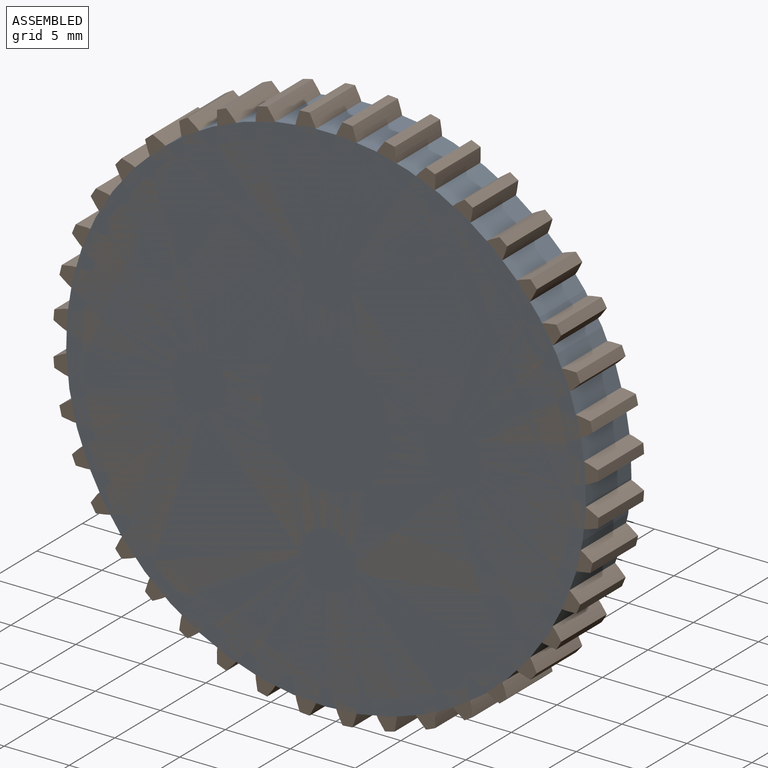
[diagram: assembled view]
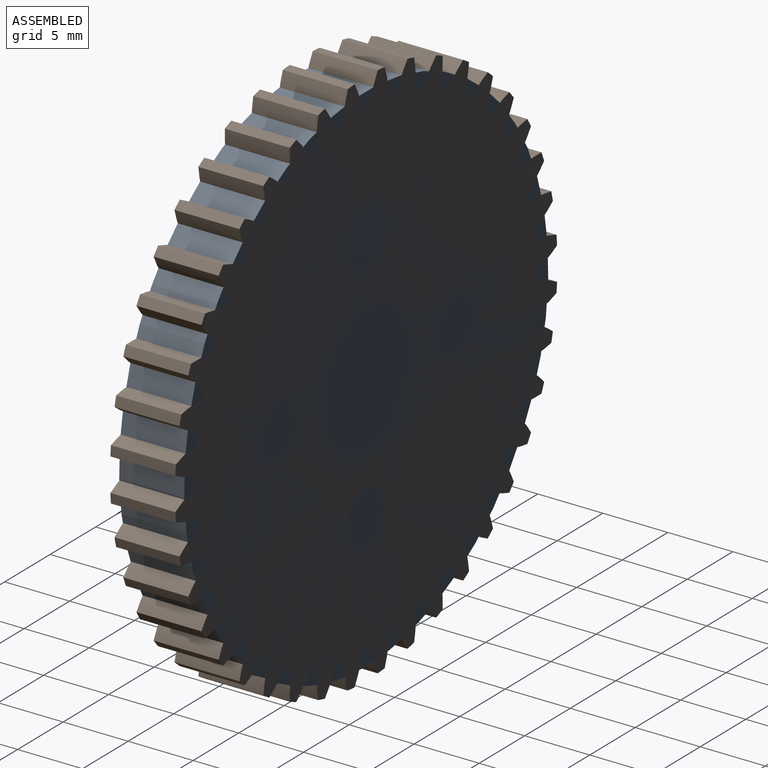
[diagram: assembled view, second angle]
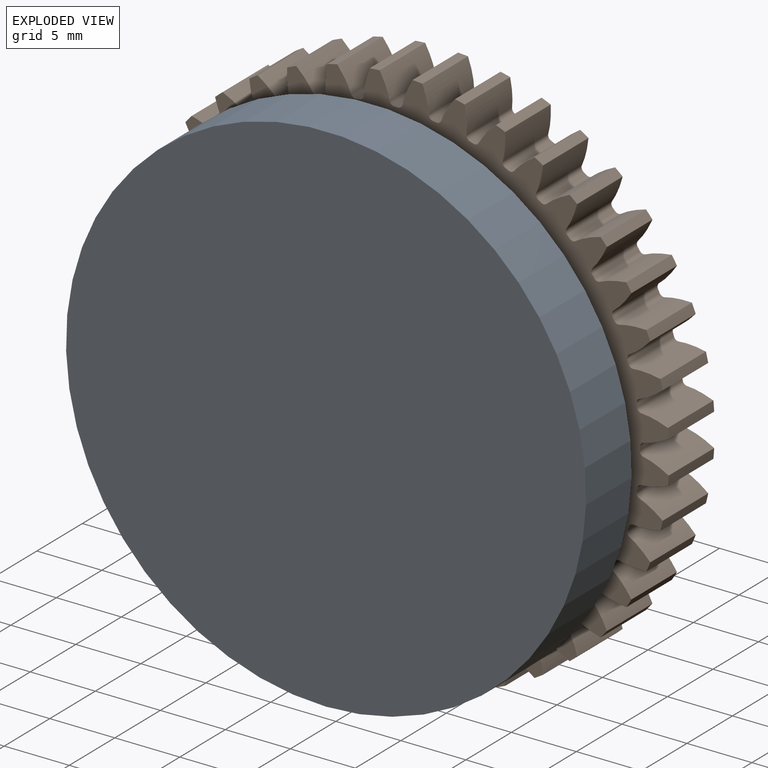
[diagram: exploded view]
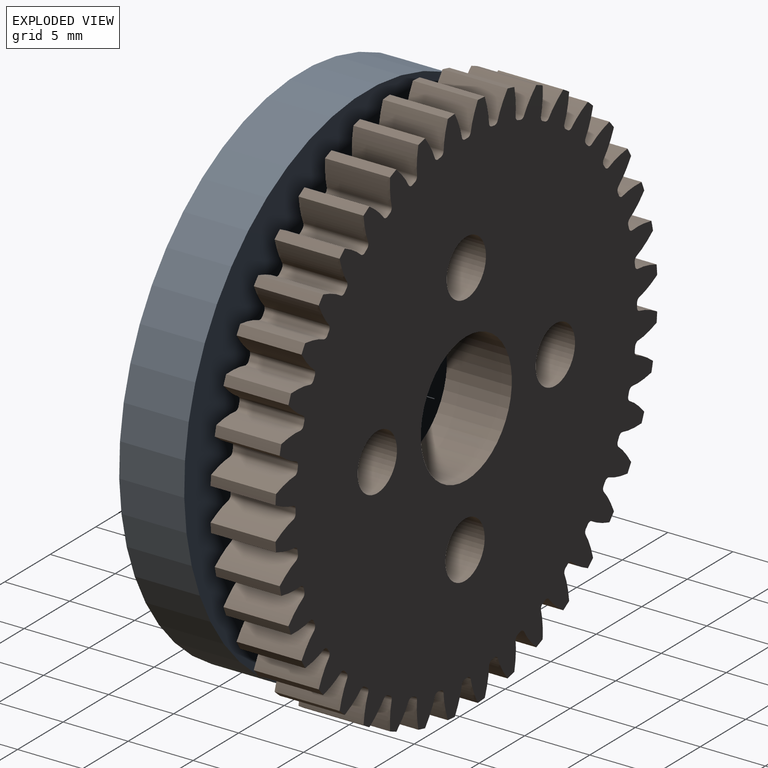
[diagram: exploded view, second angle]
ASSEMBLY  parts=2 mates=2
PART A: 3 faces, bbox 40x5x40 mm
  f0: cylinder r=20mm len=40mm, axis (0,1,0), area 628.3mm2, adj f1,f2
  f1: plane 40x40mm, normal (0,-1,0), area 1256.6mm2, adj f0
  f2: plane 40x40mm, normal (0,1,0), area 1256.6mm2, adj f0
PART B: 247 faces, bbox 41.9x5x41.9 mm
  f0: cylinder r=21mm len=5mm, axis (0,1,0), area 3.8mm2, adj f39,f41,f147,f239
  f1: cylinder r=21mm len=5mm, axis (0,1,0), area 3.8mm2, adj f39,f41,f234,f237
  f2: cylinder r=21mm len=5mm, axis (0,1,0), area 3.8mm2, adj f39,f41,f229,f232
  f3: cylinder r=21mm len=5mm, axis (0,1,0), area 3.8mm2, adj f39,f41,f224,f227
  f4: cylinder r=21mm len=5mm, axis (0,1,0), area 3.8mm2, adj f39,f41,f219,f222
  f5: cylinder r=21mm len=5mm, axis (0,1,0), area 3.8mm2, adj f39,f41,f214,f217
  f6: cylinder r=21mm len=5mm, axis (0,1,0), area 3.8mm2, adj f39,f41,f209,f212
  f7: cylinder r=21mm len=5mm, axis (0,1,0), area 3.8mm2, adj f39,f41,f204,f207
  f8: cylinder r=21mm len=5mm, axis (0,1,0), area 3.8mm2, adj f39,f41,f192,f199
  f9: cylinder r=21mm len=5mm, axis (0,1,0), area 3.8mm2, adj f39,f41,f194,f202
  f10: cylinder r=21mm len=5mm, axis (0,1,0), area 3.8mm2, adj f39,f41,f189,f197
  f11: cylinder r=21mm len=5mm, axis (0,1,0), area 3.8mm2, adj f39,f41,f184,f187
  f12: cylinder r=21mm len=5mm, axis (0,1,0), area 3.8mm2, adj f39,f41,f179,f182
  f13: cylinder r=21mm len=5mm, axis (0,1,0), area 3.8mm2, adj f39,f41,f174,f177
  f14: cylinder r=21mm len=5mm, axis (0,1,0), area 3.8mm2, adj f39,f41,f169,f172
  f15: cylinder r=21mm len=5mm, axis (0,1,0), area 3.8mm2, adj f39,f41,f164,f167
  f16: cylinder r=21mm len=5mm, axis (0,1,0), area 3.8mm2, adj f39,f41,f137,f159
  f17: cylinder r=21mm len=5mm, axis (0,1,0), area 3.8mm2, adj f39,f41,f154,f157
  f18: cylinder r=21mm len=5mm, axis (0,1,0), area 3.8mm2, adj f39,f41,f142,f149
  f19: cylinder r=21mm len=5mm, axis (0,1,0), area 3.8mm2, adj f39,f41,f144,f152
  f20: cylinder r=21mm len=5mm, axis (0,1,0), area 3.8mm2, adj f39,f41,f132,f139
  f21: cylinder r=21mm len=5mm, axis (0,1,0), area 3.8mm2, adj f39,f41,f127,f134
  f22: cylinder r=21mm len=5mm, axis (0,1,0), area 3.8mm2, adj f39,f41,f122,f129
  f23: cylinder r=21mm len=5mm, axis (0,1,0), area 3.8mm2, adj f39,f41,f82,f124
  f24: cylinder r=21mm len=5mm, axis (0,1,0), area 3.8mm2, adj f39,f41,f42,f119
  f25: cylinder r=21mm len=5mm, axis (0,1,0), area 3.8mm2, adj f39,f41,f114,f117
  f26: cylinder r=21mm len=5mm, axis (0,1,0), area 3.8mm2, adj f39,f41,f109,f112
  f27: cylinder r=21mm len=5mm, axis (0,1,0), area 3.8mm2, adj f39,f41,f104,f107
  f28: cylinder r=21mm len=5mm, axis (0,1,0), area 3.8mm2, adj f39,f41,f92,f99
  f29: cylinder r=21mm len=5mm, axis (0,1,0), area 3.8mm2, adj f39,f41,f94,f102
  f30: cylinder r=21mm len=5mm, axis (0,1,0), area 3.8mm2, adj f39,f41,f89,f97
  f31: cylinder r=21mm len=5mm, axis (0,1,0), area 3.8mm2, adj f39,f41,f84,f87
  f32: cylinder r=21mm len=5mm, axis (0,1,0), area 3.8mm2, adj f39,f41,f67,f79
  f33: cylinder r=21mm len=5mm, axis (0,1,0), area 3.8mm2, adj f39,f41,f74,f77
  f34: cylinder r=21mm len=5mm, axis (0,1,0), area 3.8mm2, adj f39,f41,f62,f69
  f35: cylinder r=21mm len=5mm, axis (0,1,0), area 3.8mm2, adj f39,f41,f64,f162
  f36: cylinder r=21mm len=5mm, axis (0,1,0), area 3.8mm2, adj f39,f41,f59,f72
  f37: cylinder r=21mm len=5mm, axis (0,1,0), area 3.8mm2, adj f39,f41,f54,f57
  f38: cylinder r=21mm len=5mm, axis (0,1,0), area 3.8mm2, adj f39,f41,f49,f52
  f39: plane 41.92x41.92mm, normal (0,-1,0), area 1110.1mm2, adj f0,f1,f2,f3,f4,f5,f6,f7
  f40: cylinder r=21mm len=5mm, axis (0,1,0), area 3.8mm2, adj f39,f41,f44,f47
  f41: plane 41.92x41.92mm, normal (0,1,0), area 1110.1mm2, adj f0,f1,f2,f3,f4,f5,f6,f7
  f42: extruded ~5x1.92mm, area 10.4mm2, adj f24,f39,f41,f45
  f43: cylinder r=18.75mm len=5mm, axis (0,1,0), area 1.4mm2, adj f39,f41,f45,f46
  f44: extruded ~5x1.92mm, area 10.4mm2, adj f39,f40,f41,f46
  f45: cylinder r=0.35mm len=5mm, axis (0,1,0), area 2.5mm2, adj f39,f41,f42,f43
  f46: cylinder r=0.35mm len=5mm, axis (0,1,0), area 2.5mm2, adj f39,f41,f43,f44
  f47: extruded ~5x2.02mm, area 10.4mm2, adj f39,f40,f41,f50
  f48: cylinder r=18.75mm len=5mm, axis (0,1,0), area 1.4mm2, adj f39,f41,f50,f51
  f49: extruded ~5x1.78mm, area 10.4mm2, adj f38,f39,f41,f51
  f50: cylinder r=0.35mm len=5mm, axis (0,1,0), area 2.5mm2, adj f39,f41,f47,f48
  f51: cylinder r=0.35mm len=5mm, axis (0,1,0), area 2.5mm2, adj f39,f41,f48,f49
  f52: extruded ~5x2.07mm, area 10.4mm2, adj f38,f39,f41,f55
  f53: cylinder r=18.75mm len=5mm, axis (0,1,0), area 1.4mm2, adj f39,f41,f55,f56
  f54: extruded ~5x1.59mm, area 10.4mm2, adj f37,f39,f41,f56
  f55: cylinder r=0.35mm len=5mm, axis (0,1,0), area 2.5mm2, adj f39,f41,f52,f53
  f56: cylinder r=0.35mm len=5mm, axis (0,1,0), area 2.5mm2, adj f39,f41,f53,f54
  f57: extruded ~5x2.07mm, area 10.4mm2, adj f37,f39,f41,f60
  f58: cylinder r=18.75mm len=5mm, axis (0,1,0), area 1.4mm2, adj f39,f41,f60,f61
  f59: extruded ~5x1.57mm, area 10.4mm2, adj f36,f39,f41,f61
  f60: cylinder r=0.35mm len=5mm, axis (0,1,0), area 2.5mm2, adj f39,f41,f57,f58
  f61: cylinder r=0.35mm len=5mm, axis (0,1,0), area 2.5mm2, adj f39,f41,f58,f59
  f62: extruded ~5x1.57mm, area 10.4mm2, adj f34,f39,f41,f65
  f63: cylinder r=18.75mm len=5mm, axis (0,1,0), area 1.4mm2, adj f39,f41,f65,f66
  f64: extruded ~5x2.07mm, area 10.4mm2, adj f35,f39,f41,f66
  f65: cylinder r=0.35mm len=5mm, axis (0,1,0), area 2.5mm2, adj f39,f41,f62,f63
  f66: cylinder r=0.35mm len=5mm, axis (0,1,0), area 2.5mm2, adj f39,f41,f63,f64
  f67: extruded ~5x1.76mm, area 10.4mm2, adj f32,f39,f41,f70
  f68: cylinder r=18.75mm len=5mm, axis (0,1,0), area 1.4mm2, adj f39,f41,f70,f71
  f69: extruded ~5x2.01mm, area 10.4mm2, adj f34,f39,f41,f71
  f70: cylinder r=0.35mm len=5mm, axis (0,1,0), area 2.5mm2, adj f39,f41,f67,f68
  f71: cylinder r=0.35mm len=5mm, axis (0,1,0), area 2.5mm2, adj f39,f41,f68,f69
  f72: extruded ~5x2.01mm, area 10.4mm2, adj f36,f39,f41,f75
  f73: cylinder r=18.75mm len=5mm, axis (0,1,0), area 1.4mm2, adj f39,f41,f75,f76
  f74: extruded ~5x1.76mm, area 10.4mm2, adj f33,f39,f41,f76
  f75: cylinder r=0.35mm len=5mm, axis (0,1,0), area 2.5mm2, adj f39,f41,f72,f73
  f76: cylinder r=0.35mm len=5mm, axis (0,1,0), area 2.5mm2, adj f39,f41,f73,f74
  f77: extruded ~5x1.91mm, area 10.4mm2, adj f33,f39,f41,f80
  f78: cylinder r=18.75mm len=5mm, axis (0,1,0), area 1.4mm2, adj f39,f41,f80,f81
  f79: extruded ~5x1.91mm, area 10.4mm2, adj f32,f39,f41,f81
  f80: cylinder r=0.35mm len=5mm, axis (0,1,0), area 2.5mm2, adj f39,f41,f77,f78
  f81: cylinder r=0.35mm len=5mm, axis (0,1,0), area 2.5mm2, adj f39,f41,f78,f79
  f82: extruded ~5x2.07mm, area 10.4mm2, adj f23,f39,f41,f85
  f83: cylinder r=18.75mm len=5mm, axis (0,1,0), area 1.4mm2, adj f39,f41,f85,f86
  f84: extruded ~5x1.59mm, area 10.4mm2, adj f31,f39,f41,f86
  f85: cylinder r=0.35mm len=5mm, axis (0,1,0), area 2.5mm2, adj f39,f41,f82,f83
  f86: cylinder r=0.35mm len=5mm, axis (0,1,0), area 2.5mm2, adj f39,f41,f83,f84
  f87: extruded ~5x2.07mm, area 10.4mm2, adj f31,f39,f41,f90
  f88: cylinder r=18.75mm len=5mm, axis (0,1,0), area 1.4mm2, adj f39,f41,f90,f91
  f89: extruded ~5x1.57mm, area 10.4mm2, adj f30,f39,f41,f91
  f90: cylinder r=0.35mm len=5mm, axis (0,1,0), area 2.5mm2, adj f39,f41,f87,f88
  f91: cylinder r=0.35mm len=5mm, axis (0,1,0), area 2.5mm2, adj f39,f41,f88,f89
  f92: extruded ~5x1.91mm, area 10.4mm2, adj f28,f39,f41,f95
  f93: cylinder r=18.75mm len=5mm, axis (0,1,0), area 1.4mm2, adj f39,f41,f95,f96
  f94: extruded ~5x1.91mm, area 10.4mm2, adj f29,f39,f41,f96
  f95: cylinder r=0.35mm len=5mm, axis (0,1,0), area 2.5mm2, adj f39,f41,f92,f93
  f96: cylinder r=0.35mm len=5mm, axis (0,1,0), area 2.5mm2, adj f39,f41,f93,f94
  f97: extruded ~5x2.01mm, area 10.4mm2, adj f30,f39,f41,f100
  f98: cylinder r=18.75mm len=5mm, axis (0,1,0), area 1.4mm2, adj f39,f41,f100,f101
  f99: extruded ~5x1.76mm, area 10.4mm2, adj f28,f39,f41,f101
  f100: cylinder r=0.35mm len=5mm, axis (0,1,0), area 2.5mm2, adj f39,f41,f97,f98
  f101: cylinder r=0.35mm len=5mm, axis (0,1,0), area 2.5mm2, adj f39,f41,f98,f99
  f102: extruded ~5x1.76mm, area 10.4mm2, adj f29,f39,f41,f105
  f103: cylinder r=18.75mm len=5mm, axis (0,1,0), area 1.4mm2, adj f39,f41,f105,f106
  f104: extruded ~5x2.01mm, area 10.4mm2, adj f27,f39,f41,f106
  f105: cylinder r=0.35mm len=5mm, axis (0,1,0), area 2.5mm2, adj f39,f41,f102,f103
  f106: cylinder r=0.35mm len=5mm, axis (0,1,0), area 2.5mm2, adj f39,f41,f103,f104
  f107: extruded ~5x1.57mm, area 10.4mm2, adj f27,f39,f41,f110
  f108: cylinder r=18.75mm len=5mm, axis (0,1,0), area 1.4mm2, adj f39,f41,f110,f111
  f109: extruded ~5x2.07mm, area 10.4mm2, adj f26,f39,f41,f111
  f110: cylinder r=0.35mm len=5mm, axis (0,1,0), area 2.5mm2, adj f39,f41,f107,f108
  f111: cylinder r=0.35mm len=5mm, axis (0,1,0), area 2.5mm2, adj f39,f41,f108,f109
  f112: extruded ~5x1.59mm, area 10.4mm2, adj f26,f39,f41,f115
  f113: cylinder r=18.75mm len=5mm, axis (0,1,0), area 1.4mm2, adj f39,f41,f115,f116
  f114: extruded ~5x2.07mm, area 10.4mm2, adj f25,f39,f41,f116
  f115: cylinder r=0.35mm len=5mm, axis (0,1,0), area 2.5mm2, adj f39,f41,f112,f113
  f116: cylinder r=0.35mm len=5mm, axis (0,1,0), area 2.5mm2, adj f39,f41,f113,f114
  f117: extruded ~5x1.78mm, area 10.4mm2, adj f25,f39,f41,f120
  f118: cylinder r=18.75mm len=5mm, axis (0,1,0), area 1.4mm2, adj f39,f41,f120,f121
  f119: extruded ~5x2.02mm, area 10.4mm2, adj f24,f39,f41,f121
  f120: cylinder r=0.35mm len=5mm, axis (0,1,0), area 2.5mm2, adj f39,f41,f117,f118
  f121: cylinder r=0.35mm len=5mm, axis (0,1,0), area 2.5mm2, adj f39,f41,f118,f119
  f122: extruded ~5x2.02mm, area 10.4mm2, adj f22,f39,f41,f125
  f123: cylinder r=18.75mm len=5mm, axis (0,1,0), area 1.4mm2, adj f39,f41,f125,f126
  f124: extruded ~5x1.78mm, area 10.4mm2, adj f23,f39,f41,f126
  f125: cylinder r=0.35mm len=5mm, axis (0,1,0), area 2.5mm2, adj f39,f41,f122,f123
  f126: cylinder r=0.35mm len=5mm, axis (0,1,0), area 2.5mm2, adj f39,f41,f123,f124
  f127: extruded ~5x1.92mm, area 10.4mm2, adj f21,f39,f41,f130
  f128: cylinder r=18.75mm len=5mm, axis (0,1,0), area 1.4mm2, adj f39,f41,f130,f131
  f129: extruded ~5x1.92mm, area 10.4mm2, adj f22,f39,f41,f131
  f130: cylinder r=0.35mm len=5mm, axis (0,1,0), area 2.5mm2, adj f39,f41,f127,f128
  f131: cylinder r=0.35mm len=5mm, axis (0,1,0), area 2.5mm2, adj f39,f41,f128,f129
  f132: extruded ~5x1.78mm, area 10.4mm2, adj f20,f39,f41,f135
  f133: cylinder r=18.75mm len=5mm, axis (0,1,0), area 1.4mm2, adj f39,f41,f135,f136
  f134: extruded ~5x2.02mm, area 10.4mm2, adj f21,f39,f41,f136
  f135: cylinder r=0.35mm len=5mm, axis (0,1,0), area 2.5mm2, adj f39,f41,f132,f133
  f136: cylinder r=0.35mm len=5mm, axis (0,1,0), area 2.5mm2, adj f39,f41,f133,f134
  f137: extruded ~5x1.59mm, area 10.4mm2, adj f16,f39,f41,f140
  f138: cylinder r=18.75mm len=5mm, axis (0,1,0), area 1.4mm2, adj f39,f41,f140,f141
  f139: extruded ~5x2.07mm, area 10.4mm2, adj f20,f39,f41,f141
  f140: cylinder r=0.35mm len=5mm, axis (0,1,0), area 2.5mm2, adj f39,f41,f137,f138
  f141: cylinder r=0.35mm len=5mm, axis (0,1,0), area 2.5mm2, adj f39,f41,f138,f139
  f142: extruded ~5x1.91mm, area 10.4mm2, adj f18,f39,f41,f145
  f143: cylinder r=18.75mm len=5mm, axis (0,1,0), area 1.4mm2, adj f39,f41,f145,f146
  f144: extruded ~5x1.91mm, area 10.4mm2, adj f19,f39,f41,f146
  f145: cylinder r=0.35mm len=5mm, axis (0,1,0), area 2.5mm2, adj f39,f41,f142,f143
  f146: cylinder r=0.35mm len=5mm, axis (0,1,0), area 2.5mm2, adj f39,f41,f143,f144
  f147: extruded ~5x2.01mm, area 10.4mm2, adj f0,f39,f41,f150
  f148: cylinder r=18.75mm len=5mm, axis (0,1,0), area 1.4mm2, adj f39,f41,f150,f151
  f149: extruded ~5x1.76mm, area 10.4mm2, adj f18,f39,f41,f151
  f150: cylinder r=0.35mm len=5mm, axis (0,1,0), area 2.5mm2, adj f39,f41,f147,f148
  f151: cylinder r=0.35mm len=5mm, axis (0,1,0), area 2.5mm2, adj f39,f41,f148,f149
  f152: extruded ~5x1.76mm, area 10.4mm2, adj f19,f39,f41,f155
  f153: cylinder r=18.75mm len=5mm, axis (0,1,0), area 1.4mm2, adj f39,f41,f155,f156
  f154: extruded ~5x2.01mm, area 10.4mm2, adj f17,f39,f41,f156
  f155: cylinder r=0.35mm len=5mm, axis (0,1,0), area 2.5mm2, adj f39,f41,f152,f153
  f156: cylinder r=0.35mm len=5mm, axis (0,1,0), area 2.5mm2, adj f39,f41,f153,f154
  f157: extruded ~5x1.57mm, area 10.4mm2, adj f17,f39,f41,f160
  f158: cylinder r=18.75mm len=5mm, axis (0,1,0), area 1.4mm2, adj f39,f41,f160,f161
  f159: extruded ~5x2.07mm, area 10.4mm2, adj f16,f39,f41,f161
  f160: cylinder r=0.35mm len=5mm, axis (0,1,0), area 2.5mm2, adj f39,f41,f157,f158
  f161: cylinder r=0.35mm len=5mm, axis (0,1,0), area 2.5mm2, adj f39,f41,f158,f159
  f162: extruded ~5x1.59mm, area 10.4mm2, adj f35,f39,f41,f165
  f163: cylinder r=18.75mm len=5mm, axis (0,1,0), area 1.4mm2, adj f39,f41,f165,f166
  f164: extruded ~5x2.07mm, area 10.4mm2, adj f15,f39,f41,f166
  f165: cylinder r=0.35mm len=5mm, axis (0,1,0), area 2.5mm2, adj f39,f41,f162,f163
  f166: cylinder r=0.35mm len=5mm, axis (0,1,0), area 2.5mm2, adj f39,f41,f163,f164
  f167: extruded ~5x1.78mm, area 10.4mm2, adj f15,f39,f41,f170
  f168: cylinder r=18.75mm len=5mm, axis (0,1,0), area 1.4mm2, adj f39,f41,f170,f171
  f169: extruded ~5x2.02mm, area 10.4mm2, adj f14,f39,f41,f171
  f170: cylinder r=0.35mm len=5mm, axis (0,1,0), area 2.5mm2, adj f39,f41,f167,f168
  f171: cylinder r=0.35mm len=5mm, axis (0,1,0), area 2.5mm2, adj f39,f41,f168,f169
  f172: extruded ~5x1.92mm, area 10.4mm2, adj f14,f39,f41,f175
  f173: cylinder r=18.75mm len=5mm, axis (0,1,0), area 1.4mm2, adj f39,f41,f175,f176
  f174: extruded ~5x1.92mm, area 10.4mm2, adj f13,f39,f41,f176
  f175: cylinder r=0.35mm len=5mm, axis (0,1,0), area 2.5mm2, adj f39,f41,f172,f173
  f176: cylinder r=0.35mm len=5mm, axis (0,1,0), area 2.5mm2, adj f39,f41,f173,f174
  f177: extruded ~5x2.02mm, area 10.4mm2, adj f13,f39,f41,f180
  f178: cylinder r=18.75mm len=5mm, axis (0,1,0), area 1.4mm2, adj f39,f41,f180,f181
  f179: extruded ~5x1.78mm, area 10.4mm2, adj f12,f39,f41,f181
  f180: cylinder r=0.35mm len=5mm, axis (0,1,0), area 2.5mm2, adj f39,f41,f177,f178
  f181: cylinder r=0.35mm len=5mm, axis (0,1,0), area 2.5mm2, adj f39,f41,f178,f179
  f182: extruded ~5x2.07mm, area 10.4mm2, adj f12,f39,f41,f185
  f183: cylinder r=18.75mm len=5mm, axis (0,1,0), area 1.4mm2, adj f39,f41,f185,f186
  f184: extruded ~5x1.59mm, area 10.4mm2, adj f11,f39,f41,f186
  f185: cylinder r=0.35mm len=5mm, axis (0,1,0), area 2.5mm2, adj f39,f41,f182,f183
  f186: cylinder r=0.35mm len=5mm, axis (0,1,0), area 2.5mm2, adj f39,f41,f183,f184
  f187: extruded ~5x2.07mm, area 10.4mm2, adj f11,f39,f41,f190
  f188: cylinder r=18.75mm len=5mm, axis (0,1,0), area 1.4mm2, adj f39,f41,f190,f191
  f189: extruded ~5x1.57mm, area 10.4mm2, adj f10,f39,f41,f191
  f190: cylinder r=0.35mm len=5mm, axis (0,1,0), area 2.5mm2, adj f39,f41,f187,f188
  f191: cylinder r=0.35mm len=5mm, axis (0,1,0), area 2.5mm2, adj f39,f41,f188,f189
  f192: extruded ~5x1.91mm, area 10.4mm2, adj f8,f39,f41,f195
  f193: cylinder r=18.75mm len=5mm, axis (0,1,0), area 1.4mm2, adj f39,f41,f195,f196
  f194: extruded ~5x1.91mm, area 10.4mm2, adj f9,f39,f41,f196
  f195: cylinder r=0.35mm len=5mm, axis (0,1,0), area 2.5mm2, adj f39,f41,f192,f193
  f196: cylinder r=0.35mm len=5mm, axis (0,1,0), area 2.5mm2, adj f39,f41,f193,f194
  f197: extruded ~5x2.01mm, area 10.4mm2, adj f10,f39,f41,f200
  f198: cylinder r=18.75mm len=5mm, axis (0,1,0), area 1.4mm2, adj f39,f41,f200,f201
  f199: extruded ~5x1.76mm, area 10.4mm2, adj f8,f39,f41,f201
  f200: cylinder r=0.35mm len=5mm, axis (0,1,0), area 2.5mm2, adj f39,f41,f197,f198
  f201: cylinder r=0.35mm len=5mm, axis (0,1,0), area 2.5mm2, adj f39,f41,f198,f199
  f202: extruded ~5x1.76mm, area 10.4mm2, adj f9,f39,f41,f205
  f203: cylinder r=18.75mm len=5mm, axis (0,1,0), area 1.4mm2, adj f39,f41,f205,f206
  f204: extruded ~5x2.01mm, area 10.4mm2, adj f7,f39,f41,f206
  f205: cylinder r=0.35mm len=5mm, axis (0,1,0), area 2.5mm2, adj f39,f41,f202,f203
  f206: cylinder r=0.35mm len=5mm, axis (0,1,0), area 2.5mm2, adj f39,f41,f203,f204
  f207: extruded ~5x1.57mm, area 10.4mm2, adj f7,f39,f41,f210
  f208: cylinder r=18.75mm len=5mm, axis (0,1,0), area 1.4mm2, adj f39,f41,f210,f211
  f209: extruded ~5x2.07mm, area 10.4mm2, adj f6,f39,f41,f211
  f210: cylinder r=0.35mm len=5mm, axis (0,1,0), area 2.5mm2, adj f39,f41,f207,f208
  f211: cylinder r=0.35mm len=5mm, axis (0,1,0), area 2.5mm2, adj f39,f41,f208,f209
  f212: extruded ~5x1.59mm, area 10.4mm2, adj f6,f39,f41,f215
  f213: cylinder r=18.75mm len=5mm, axis (0,1,0), area 1.4mm2, adj f39,f41,f215,f216
  f214: extruded ~5x2.07mm, area 10.4mm2, adj f5,f39,f41,f216
  f215: cylinder r=0.35mm len=5mm, axis (0,1,0), area 2.5mm2, adj f39,f41,f212,f213
  f216: cylinder r=0.35mm len=5mm, axis (0,1,0), area 2.5mm2, adj f39,f41,f213,f214
  f217: extruded ~5x1.78mm, area 10.4mm2, adj f5,f39,f41,f220
  f218: cylinder r=18.75mm len=5mm, axis (0,1,0), area 1.4mm2, adj f39,f41,f220,f221
  f219: extruded ~5x2.02mm, area 10.4mm2, adj f4,f39,f41,f221
  f220: cylinder r=0.35mm len=5mm, axis (0,1,0), area 2.5mm2, adj f39,f41,f217,f218
  f221: cylinder r=0.35mm len=5mm, axis (0,1,0), area 2.5mm2, adj f39,f41,f218,f219
  f222: extruded ~5x1.92mm, area 10.4mm2, adj f4,f39,f41,f225
  f223: cylinder r=18.75mm len=5mm, axis (0,1,0), area 1.4mm2, adj f39,f41,f225,f226
  f224: extruded ~5x1.92mm, area 10.4mm2, adj f3,f39,f41,f226
  f225: cylinder r=0.35mm len=5mm, axis (0,1,0), area 2.5mm2, adj f39,f41,f222,f223
  f226: cylinder r=0.35mm len=5mm, axis (0,1,0), area 2.5mm2, adj f39,f41,f223,f224
  f227: extruded ~5x2.02mm, area 10.4mm2, adj f3,f39,f41,f230
  f228: cylinder r=18.75mm len=5mm, axis (0,1,0), area 1.4mm2, adj f39,f41,f230,f231
  f229: extruded ~5x1.78mm, area 10.4mm2, adj f2,f39,f41,f231
  f230: cylinder r=0.35mm len=5mm, axis (0,1,0), area 2.5mm2, adj f39,f41,f227,f228
  f231: cylinder r=0.35mm len=5mm, axis (0,1,0), area 2.5mm2, adj f39,f41,f228,f229
  f232: extruded ~5x2.07mm, area 10.4mm2, adj f2,f39,f41,f235
  f233: cylinder r=18.75mm len=5mm, axis (0,1,0), area 1.4mm2, adj f39,f41,f235,f236
  f234: extruded ~5x1.59mm, area 10.4mm2, adj f1,f39,f41,f236
  f235: cylinder r=0.35mm len=5mm, axis (0,1,0), area 2.5mm2, adj f39,f41,f232,f233
  f236: cylinder r=0.35mm len=5mm, axis (0,1,0), area 2.5mm2, adj f39,f41,f233,f234
  f237: extruded ~5x2.07mm, area 10.4mm2, adj f1,f39,f41,f240
  f238: cylinder r=18.75mm len=5mm, axis (0,1,0), area 1.4mm2, adj f39,f41,f240,f241
  f239: extruded ~5x1.57mm, area 10.4mm2, adj f0,f39,f41,f241
  f240: cylinder r=0.35mm len=5mm, axis (0,1,0), area 2.5mm2, adj f39,f41,f237,f238
  f241: cylinder r=0.35mm len=5mm, axis (0,1,0), area 2.5mm2, adj f39,f41,f238,f239
  f242: cylinder r=5mm len=10mm, axis (0,-1,0), area 157.1mm2, adj f39,f41
  f243: cylinder r=2.16mm len=5mm, axis (0,-1,0), area 67.8mm2, adj f39,f41
  f244: cylinder r=2.16mm len=5mm, axis (0,-1,0), area 67.8mm2, adj f39,f41
  f245: cylinder r=2.16mm len=5mm, axis (0,-1,0), area 67.8mm2, adj f39,f41
  f246: cylinder r=2.16mm len=5mm, axis (0,-1,0), area 67.8mm2, adj f39,f41
PLACE A t=(0.52,3.18,0.57)mm
PLACE B t=(0.52,3.18,0.57)mm fixed
MATE cylindrical A.f0 <-> B.f242  axis (0,1,0) through (0.52,0.68,0.57)mm
MATE planar A.f0 <-> B.f0  axis (0,-1,0) through (0.52,-1.82,0.57)mm
